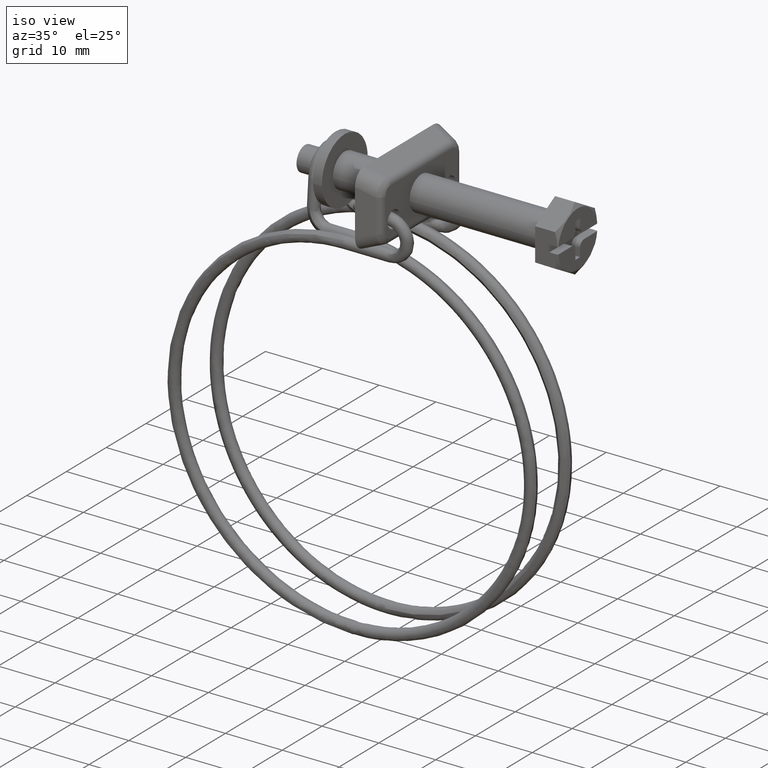
[diagram: clean part render]
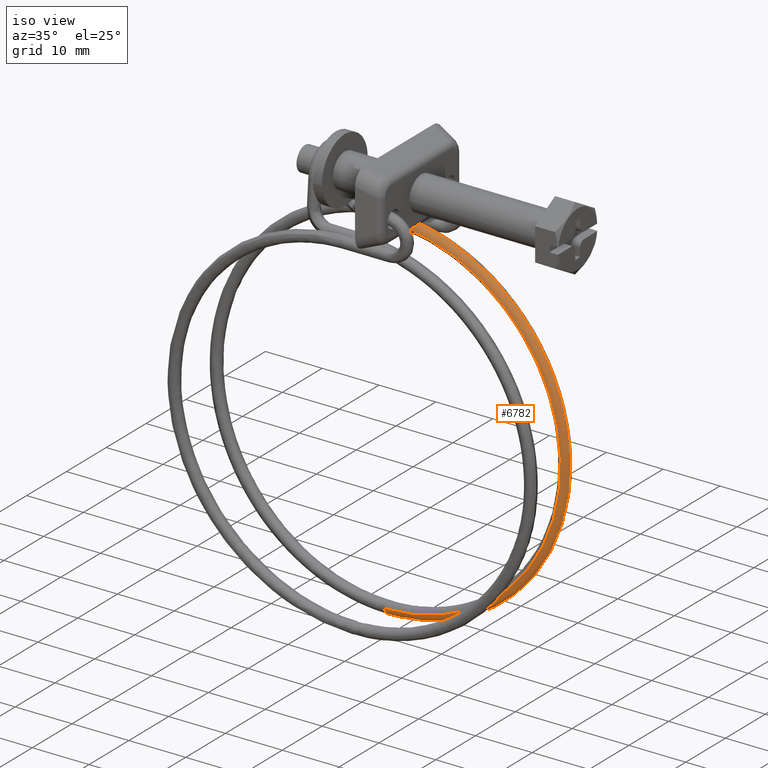
[diagram: same view with one face highlighted and labeled with its STEP entity id]
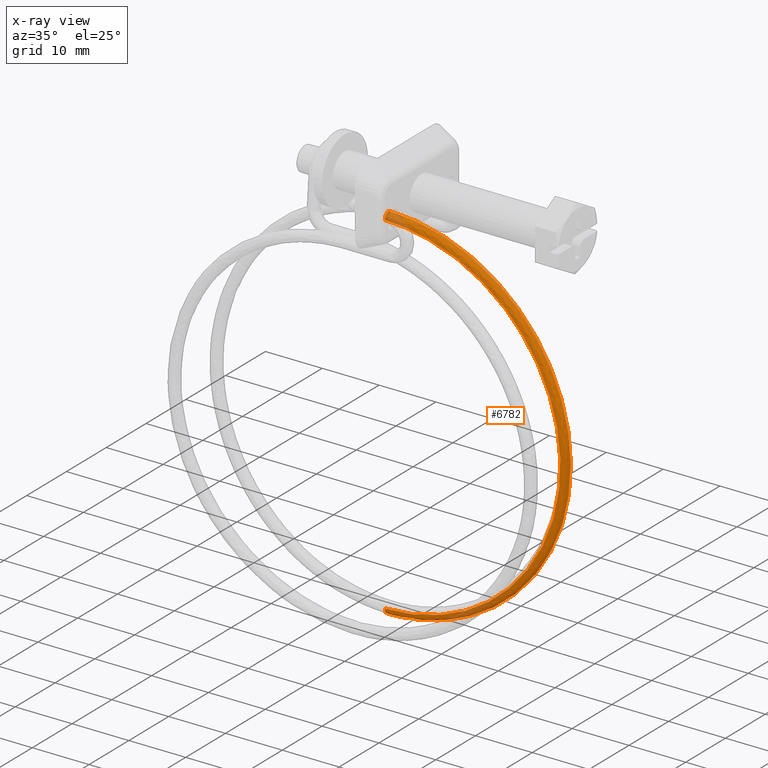
[diagram: x-ray of the same camera — body ghosted, the highlighted face saturated]
A machine part, iso view. The second image highlights one B-rep face of the part: STEP entity #6782.
The next image is the same camera in x-ray: the body ghosted, the highlighted face saturated — about 8% of this face is hidden behind the body in this view.
In plain terms, the highlighted face is a freeform B-spline surface patch.
Its self-contained STEP definition (entity closure, byte-faithful):
#5534=CARTESIAN_POINT('',(-32.249995797983253,3.306690361283858,-7.965465229929489));
#5535=VERTEX_POINT('',#5534);
#5549=CARTESIAN_POINT('',(-32.250006683055332,3.539596034314915,-7.200552951595864));
#5550=VERTEX_POINT('',#5549);
#5551=CARTESIAN_POINT('',(-32.249995797983246,3.306690361283858,-7.965465229929489));
#5552=CARTESIAN_POINT('',(-32.249996373143262,3.300001999930786,-7.907926829120221));
#5553=CARTESIAN_POINT('',(-32.249997019943621,3.300001999932813,-7.850000999432049));
#5554=CARTESIAN_POINT('',(-32.250001139301951,3.300001999945721,-7.481081522551485));
#5555=CARTESIAN_POINT('',(-32.250006683055325,3.539596034314914,-7.200552951595864));
#5563=(BOUNDED_CURVE()B_SPLINE_CURVE(2,(#5551,#5552,#5553,#5554,#5555),.UNSPECIFIED.,.F.,.U.)B_SPLINE_CURVE_WITH_KNOTS((3,2,3),(0.729999999794960,0.750000000000000,0.863143161318559),.UNSPECIFIED.)CURVE()GEOMETRIC_REPRESENTATION_ITEM()RATIONAL_B_SPLINE_CURVE((0.956886117787091,0.976568542254704,1.0,0.867444541178711,0.854871031646003))REPRESENTATION_ITEM(''));
#5564=EDGE_CURVE('',#5535,#5550,#5563,.T.);
#5664=CARTESIAN_POINT('',(-32.250018250346912,4.300001999998960,-6.850001000013299));
#5665=VERTEX_POINT('',#5664);
#5666=CARTESIAN_POINT('',(-32.250006683055339,3.539596034314915,-7.200552951595864));
#5667=CARTESIAN_POINT('',(-32.250013610597748,3.838995685433649,-6.850000999887082));
#5668=CARTESIAN_POINT('',(-32.250018250346912,4.300001999998960,-6.850001000013299));
#5676=(BOUNDED_CURVE()B_SPLINE_CURVE(2,(#5666,#5667,#5668),.UNSPECIFIED.,.F.,.U.)B_SPLINE_CURVE_WITH_KNOTS((3,3),(0.863143161318558,1.0),.UNSPECIFIED.)CURVE()GEOMETRIC_REPRESENTATION_ITEM()RATIONAL_B_SPLINE_CURVE((0.854871031646003,0.839662240007836,1.0))REPRESENTATION_ITEM(''));
#5677=EDGE_CURVE('',#5550,#5665,#5676,.T.);
#6652=CARTESIAN_POINT('',(-32.250030118507993,4.300001999997921,-70.850000999971741));
#6653=VERTEX_POINT('',#6652);
#6654=CARTESIAN_POINT('',(-32.250030118508000,4.300001999997921,-70.850000999971741));
#6655=CARTESIAN_POINT('',(-0.048303568751851,4.300001999997919,-70.850031308359632));
#6656=CARTESIAN_POINT('',(-0.250631652603623,4.300001999997920,-38.648940393102208));
#6657=CARTESIAN_POINT('',(-0.450433024621949,4.300001999997920,-6.849982863959623));
#6658=CARTESIAN_POINT('',(-32.250018250346912,4.300001999998960,-6.850001000013299));
#6666=(BOUNDED_CURVE()B_SPLINE_CURVE(2,(#6654,#6655,#6656,#6657,#6658),.UNSPECIFIED.,.F.,.U.)B_SPLINE_CURVE_WITH_KNOTS((3,2,3),(-3.821090271559217,-2.0,-0.194543099030353),.UNSPECIFIED.)CURVE()GEOMETRIC_REPRESENTATION_ITEM()RATIONAL_B_SPLINE_CURVE((0.943591996983227,0.684712488759696,1.0,0.687419112688482,0.939189545484760))REPRESENTATION_ITEM(''));
#6667=EDGE_CURVE('',#6653,#5665,#6666,.T.);
#6693=CARTESIAN_POINT('',(-32.250000143398744,3.306810115031827,-69.734552577144655));
#6694=VERTEX_POINT('',#6693);
#6704=CARTESIAN_POINT('',(-32.250000143398744,3.306810115031827,-69.734552577144669));
#6705=CARTESIAN_POINT('',(-1.170798767039687,3.306810115027870,-69.734552721446605));
#6706=CARTESIAN_POINT('',(-1.366073863642181,3.306749861938610,-38.655956869324513));
#6707=CARTESIAN_POINT('',(-1.558910371853802,3.306690361287767,-7.965469405666847));
#6708=CARTESIAN_POINT('',(-32.249995797983253,3.306690361283858,-7.965465229929489));
#6716=(BOUNDED_CURVE()B_SPLINE_CURVE(2,(#6704,#6705,#6706,#6707,#6708),.UNSPECIFIED.,.F.,.U.)B_SPLINE_CURVE_WITH_KNOTS((3,2,3),(-3.821089103717523,-2.0,-0.194543975740118),.UNSPECIFIED.)CURVE()GEOMETRIC_REPRESENTATION_ITEM()RATIONAL_B_SPLINE_CURVE((0.902909765432298,0.655192068918556,0.956886118190660,0.657781951552273,0.898697204452393))REPRESENTATION_ITEM(''));
#6717=EDGE_CURVE('',#6694,#5535,#6716,.T.);
#6722=CARTESIAN_POINT('',(-36.699114627125539,4.307675574625223,-70.539200722219277));
#6723=CARTESIAN_POINT('',(-0.017897857807888,4.307675574625223,-75.689186821574978));
#6724=CARTESIAN_POINT('',(-0.250631652603623,4.307675574625223,-38.648940393102208));
#6725=CARTESIAN_POINT('',(-0.480989173711485,4.307675574625224,-1.986884691324497));
#6726=CARTESIAN_POINT('',(-36.775316403008780,4.307675574625224,-7.171593346636915));
#6727=CARTESIAN_POINT('',(-36.699114627125560,4.303844894629335,-70.539200722219320));
#6728=CARTESIAN_POINT('',(-0.017897857807888,4.303844894629332,-75.689186821574950));
#6729=CARTESIAN_POINT('',(-0.250631652603623,4.303844894629335,-38.648940393102237));
#6730=CARTESIAN_POINT('',(-0.480989173711485,4.303844894629333,-1.986884691324498));
#6731=CARTESIAN_POINT('',(-36.775316403008773,4.303844894629334,-7.171593346636915));
#6732=CARTESIAN_POINT('',(-36.699114627125546,3.300001999997920,-70.539200722219277));
#6733=CARTESIAN_POINT('',(-0.017897857807888,3.300001999997920,-75.689186821574950));
#6734=CARTESIAN_POINT('',(-0.250631652603623,3.300001999997920,-38.648940393102208));
#6735=CARTESIAN_POINT('',(-0.480989173711485,3.300001999997921,-1.986884691324498));
#6736=CARTESIAN_POINT('',(-36.775316403008780,3.300001999997919,-7.171593346636914));
#6737=CARTESIAN_POINT('',(-36.560079795027882,3.300001999997920,-69.548913230899942));
#6738=CARTESIAN_POINT('',(-1.025151049751393,3.300001999997920,-74.537962264650758));
#6739=CARTESIAN_POINT('',(-1.250611913459760,3.300001999997920,-38.655223537067769));
#6740=CARTESIAN_POINT('',(-1.473770762033001,3.300001999997922,-3.138857075970606));
#6741=CARTESIAN_POINT('',(-36.633900265414745,3.300001999997920,-8.161543585804514));
#6742=CARTESIAN_POINT('',(-36.552026094970032,3.300001999997920,-69.491550062938430));
#6743=CARTESIAN_POINT('',(-1.083496969028065,3.300001999997920,-74.471276692835360));
#6744=CARTESIAN_POINT('',(-1.308536542584639,3.300001999997920,-38.655587493035888));
#6745=CARTESIAN_POINT('',(-1.531278402490121,3.300001999997922,-3.205585966284500));
#6746=CARTESIAN_POINT('',(-36.625708626396396,3.300001999997920,-8.218887218174592));
#6747=CARTESIAN_POINT('',(-36.542580910067016,3.307898749424539,-69.424275925072820));
#6748=CARTESIAN_POINT('',(-1.151923653899274,3.307898749424540,-74.393069464898332));
#6749=CARTESIAN_POINT('',(-1.376469148541444,3.307898749424539,-38.656014331804528));
#6750=CARTESIAN_POINT('',(-1.598721974209102,3.307898749424540,-3.283843997110312));
#6751=CARTESIAN_POINT('',(-36.616101670012213,3.307898749424540,-8.286138445170460));
#6752=CARTESIAN_POINT('',(-36.541124994614989,3.309115983351557,-69.413906042657061));
#6753=CARTESIAN_POINT('',(-1.162471194138776,3.309115983351558,-74.381014315869280));
#6754=CARTESIAN_POINT('',(-1.386940529644479,3.309115983351557,-38.656080126298242));
#6755=CARTESIAN_POINT('',(-1.609117973780623,3.309115983351556,-3.295906977083009));
#6756=CARTESIAN_POINT('',(-36.614620818510616,3.309115983351556,-8.296504796020713));
#6764=(BOUNDED_SURFACE()B_SPLINE_SURFACE(2,2,((#6722,#6727,#6732,#6737,#6742,#6747,#6752),(#6723,#6728,#6733,#6738,#6743,#6748,#6753),(#6724,#6729,#6734,#6739,#6744,#6749,#6754),(#6725,#6730,#6735,#6740,#6745,#6750,#6755),(#6726,#6731,#6736,#6741,#6746,#6751,#6756)),.UNSPECIFIED.,.F.,.F.,.U.)B_SPLINE_SURFACE_WITH_KNOTS((3,2,3),(3,1,2,1,3),(0.0,58.570550962684507,116.748766120102400),(0.0,0.009018818191324,1.665873067683706,1.798421281235149,1.821801314718196),.UNSPECIFIED.)GEOMETRIC_REPRESENTATION_ITEM()RATIONAL_B_SPLINE_SURFACE(((1.003188633750687,1.001594316875343,0.707106781186548,1.0,0.976568564840903,0.953414397255007,0.949942638778106),(0.655822165894038,0.654779900948910,0.462262315535137,0.653737636003782,0.638419624974698,0.623282874193459,0.621013255013994),(1.003188633750687,1.001594316875343,0.707106781186548,1.0,0.976568564840903,0.953414397255007,0.949942638778106),(0.658149005929673,0.657103043055551,0.463902410241735,0.656057080181430,0.640684721246492,0.625494265666058,0.623216593936607),(0.998566126432417,0.996979155873784,0.703848564176440,0.995392185315151,0.972068717867067,0.949021240394589,0.945565479137380)))REPRESENTATION_ITEM('')SURFACE());
#6765=ORIENTED_EDGE('',*,*,#5677,.F.);
#6766=ORIENTED_EDGE('',*,*,#5564,.F.);
#6767=ORIENTED_EDGE('',*,*,#6717,.F.);
#6768=CARTESIAN_POINT('',(-32.250000143398744,3.306810115031827,-69.734552577144655));
#6769=CARTESIAN_POINT('',(-32.250000656129522,3.302225957859444,-69.772838956680815));
#6770=CARTESIAN_POINT('',(-32.250001202866663,3.299886312383937,-69.811395665297979));
#6771=CARTESIAN_POINT('',(-32.250005705966238,3.299904328683126,-70.111788687970275));
#6772=CARTESIAN_POINT('',(-32.250011044756363,3.407698784858643,-70.371978517569246));
#6773=CARTESIAN_POINT('',(-32.250021536300167,3.777981004968855,-70.742223790526808));
#6774=CARTESIAN_POINT('',(-32.250026624448672,4.038188632934677,-70.849999325430929));
#6775=CARTESIAN_POINT('',(-32.250030118507993,4.300001999997921,-70.850000999971741));
#6776=B_SPLINE_CURVE_WITH_KNOTS('',3,(#6768,#6769,#6770,#6771,#6772,#6773,#6774,#6775),.UNSPECIFIED.,.F.,.U.,(4,2,2,4),(0.731573927143940,0.750000000000000,0.875000000000000,1.0),.UNSPECIFIED.);
#6777=EDGE_CURVE('',#6694,#6653,#6776,.T.);
#6778=ORIENTED_EDGE('',*,*,#6777,.T.);
#6779=ORIENTED_EDGE('',*,*,#6667,.T.);
#6780=EDGE_LOOP('',(#6765,#6766,#6767,#6778,#6779));
#6781=FACE_OUTER_BOUND('',#6780,.T.);
#6782=ADVANCED_FACE('',(#6781),#6764,.T.);